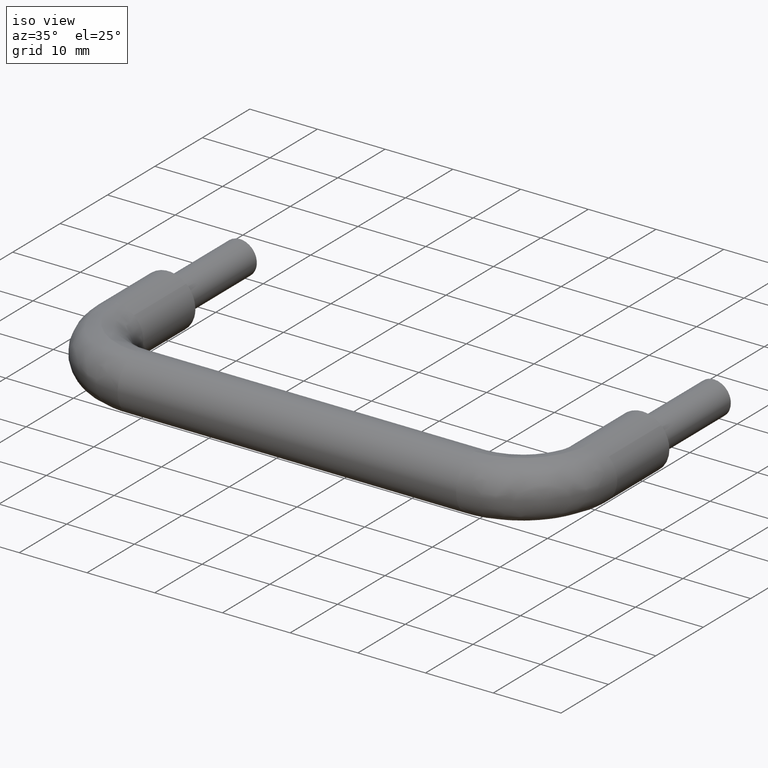
[diagram: clean part render]
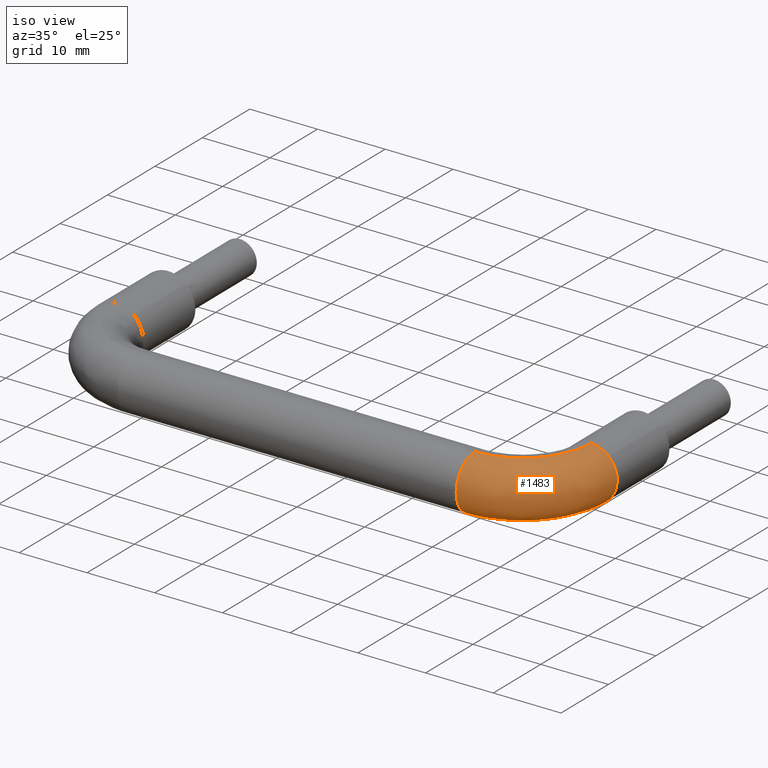
[diagram: same view with one face highlighted and labeled with its STEP entity id]
A machine part, iso view. The second image highlights one B-rep face of the part: STEP entity #1483.
In plain terms, the highlighted face is a freeform B-spline surface patch.
Its self-contained STEP definition (entity closure, byte-faithful):
#751=CARTESIAN_POINT('',(72.753417502998204,-11.000000000199600,2.901498242596409));
#752=VERTEX_POINT('',#751);
#758=CARTESIAN_POINT('',(74.000000000000014,-11.0,0.0));
#759=VERTEX_POINT('',#758);
#760=CARTESIAN_POINT('',(72.753417502998204,-11.000000000199599,2.901498242596409));
#761=CARTESIAN_POINT('',(74.000000000000014,-11.0,1.718536276351393));
#762=CARTESIAN_POINT('',(74.000000000000014,-11.0,0.0));
#770=(BOUNDED_CURVE()B_SPLINE_CURVE(2,(#760,#761,#762),.UNSPECIFIED.,.F.,.U.)B_SPLINE_CURVE_WITH_KNOTS((3,3),(0.871049485096384,1.0),.UNSPECIFIED.)CURVE()GEOMETRIC_REPRESENTATION_ITEM()RATIONAL_B_SPLINE_CURVE((0.853699664447265,0.848925074488911,1.0))REPRESENTATION_ITEM(''));
#771=EDGE_CURVE('',#752,#759,#770,.T.);
#773=CARTESIAN_POINT('',(69.899479617930368,-11.000000000273801,-3.998736757125752));
#774=VERTEX_POINT('',#773);
#775=CARTESIAN_POINT('',(74.000000000000014,-11.0,0.0));
#776=CARTESIAN_POINT('',(74.000000000000014,-11.0,-4.000000000000000));
#777=CARTESIAN_POINT('',(70.0,-11.0,-4.0));
#778=CARTESIAN_POINT('',(69.949731871210062,-11.0,-4.000000000000001));
#779=CARTESIAN_POINT('',(69.899479617930368,-11.000000000273797,-3.998736757125752));
#787=(BOUNDED_CURVE()B_SPLINE_CURVE(2,(#775,#776,#777,#778,#779),.UNSPECIFIED.,.F.,.U.)B_SPLINE_CURVE_WITH_KNOTS((3,2,3),(0.0,0.250000000000000,0.254420108256121),.UNSPECIFIED.)CURVE()GEOMETRIC_REPRESENTATION_ITEM()RATIONAL_B_SPLINE_CURVE((1.0,0.707106781186548,1.0,0.994821521061443,0.989826157622969))REPRESENTATION_ITEM(''));
#788=EDGE_CURVE('',#759,#774,#787,.T.);
#890=CARTESIAN_POINT('',(70.100520384564703,-11.000000000624340,3.998736757063030));
#891=VERTEX_POINT('',#890);
#907=CARTESIAN_POINT('',(70.100520384564703,-11.000000000624345,3.998736757063030));
#908=CARTESIAN_POINT('',(71.637893708832209,-11.000000000378193,3.960090211551882));
#909=CARTESIAN_POINT('',(72.753417502998204,-11.000000000199599,2.901498242596409));
#917=(BOUNDED_CURVE()B_SPLINE_CURVE(2,(#907,#908,#909),.UNSPECIFIED.,.F.,.U.)B_SPLINE_CURVE_WITH_KNOTS((3,3),(0.754420108474482,0.871049485096384),.UNSPECIFIED.)CURVE()GEOMETRIC_REPRESENTATION_ITEM()RATIONAL_B_SPLINE_CURVE((0.989826157129411,0.858018045423753,0.853699664447265))REPRESENTATION_ITEM(''));
#918=EDGE_CURVE('',#891,#752,#917,.T.);
#1032=CARTESIAN_POINT('',(59.999995540924871,-23.901497832919951,-2.753417935140964));
#1033=VERTEX_POINT('',#1032);
#1039=CARTESIAN_POINT('',(60.0,-25.0,0.0));
#1040=VERTEX_POINT('',#1039);
#1041=CARTESIAN_POINT('',(60.0,-25.0,0.0));
#1042=CARTESIAN_POINT('',(59.999998165934080,-25.000000000000018,-1.595837596406055));
#1043=CARTESIAN_POINT('',(59.999995540924878,-23.901497832919951,-2.753417935140964));
#1051=(BOUNDED_CURVE()B_SPLINE_CURVE(2,(#1041,#1042,#1043),.UNSPECIFIED.,.F.,.U.)B_SPLINE_CURVE_WITH_KNOTS((3,3),(0.0,0.121049488416020),.UNSPECIFIED.)CURVE()GEOMETRIC_REPRESENTATION_ITEM()RATIONAL_B_SPLINE_CURVE((1.0,0.858181702808441,0.853699664201436))REPRESENTATION_ITEM(''));
#1052=EDGE_CURVE('',#1040,#1033,#1051,.T.);
#1054=CARTESIAN_POINT('',(60.000000000247098,-21.100520383177319,3.998736757097906));
#1055=VERTEX_POINT('',#1054);
#1056=CARTESIAN_POINT('',(60.000000000247098,-21.100520383177322,3.998736757097907));
#1057=CARTESIAN_POINT('',(59.999999999999986,-24.999999999999989,3.900711501982625));
#1058=CARTESIAN_POINT('',(60.0,-25.0,0.0));
#1066=(BOUNDED_CURVE()B_SPLINE_CURVE(2,(#1056,#1057,#1058),.UNSPECIFIED.,.F.,.U.)B_SPLINE_CURVE_WITH_KNOTS((3,3),(0.754420108353063,1.0),.UNSPECIFIED.)CURVE()GEOMETRIC_REPRESENTATION_ITEM()RATIONAL_B_SPLINE_CURVE((0.989826157403852,0.712285260238679,1.0))REPRESENTATION_ITEM(''));
#1067=EDGE_CURVE('',#1055,#1040,#1066,.T.);
#1105=CARTESIAN_POINT('',(59.999990571734777,-20.899485182958191,-3.998736897012089));
#1106=VERTEX_POINT('',#1105);
#1120=CARTESIAN_POINT('',(59.999995540924871,-23.901497832919944,-2.753417935140964));
#1121=CARTESIAN_POINT('',(59.999992714095086,-22.718536224237177,-3.999999999997181));
#1122=CARTESIAN_POINT('',(59.999990688743168,-21.000000000000089,-3.999999999996398));
#1123=CARTESIAN_POINT('',(59.999990629503799,-20.949734655190763,-3.999999999996376));
#1124=CARTESIAN_POINT('',(59.999990571734784,-20.899485182958188,-3.998736897012089));
#1132=(BOUNDED_CURVE()B_SPLINE_CURVE(2,(#1120,#1121,#1122,#1123,#1124),.UNSPECIFIED.,.F.,.U.)B_SPLINE_CURVE_WITH_KNOTS((3,2,3),(0.121049488416020,0.250000000000000,0.254419864726559),.UNSPECIFIED.)CURVE()GEOMETRIC_REPRESENTATION_ITEM()RATIONAL_B_SPLINE_CURVE((0.853699664201436,0.848925078378107,1.0,0.994821806374072,0.989826708070981))REPRESENTATION_ITEM(''));
#1133=EDGE_CURVE('',#1033,#1106,#1132,.T.);
#1412=CARTESIAN_POINT('',(59.999990571734777,-20.899485182958184,-3.998736897012089));
#1413=CARTESIAN_POINT('',(69.899479617528286,-20.899491828722166,-3.998736827068921));
#1414=CARTESIAN_POINT('',(69.899479617930368,-11.000000000273795,-3.998736757125752));
#1422=(BOUNDED_CURVE()B_SPLINE_CURVE(2,(#1412,#1413,#1414),.UNSPECIFIED.,.F.,.U.)B_SPLINE_CURVE_WITH_KNOTS((3,3),(-1.733068856363078,-0.253787686499701),.UNSPECIFIED.)CURVE()GEOMETRIC_REPRESENTATION_ITEM()RATIONAL_B_SPLINE_CURVE((0.889551518137046,0.630646669306107,0.894193516980253))REPRESENTATION_ITEM(''));
#1423=EDGE_CURVE('',#1106,#774,#1422,.T.);
#1428=CARTESIAN_POINT('',(60.000000000247098,-21.100520383177319,3.998736757097906));
#1429=CARTESIAN_POINT('',(70.100520380524642,-21.100520381279154,3.998736757133199));
#1430=CARTESIAN_POINT('',(70.100520384564703,-11.000000000624340,3.998736757063030));
#1438=(BOUNDED_CURVE()B_SPLINE_CURVE(2,(#1428,#1429,#1430),.UNSPECIFIED.,.F.,.U.)B_SPLINE_CURVE_WITH_KNOTS((3,3),(-1.733067862682674,-0.253787686571340),.UNSPECIFIED.)CURVE()GEOMETRIC_REPRESENTATION_ITEM()RATIONAL_B_SPLINE_CURVE((0.889551170307972,0.630646846351479,0.894193516954727))REPRESENTATION_ITEM(''));
#1439=EDGE_CURVE('',#1055,#891,#1438,.T.);
#1444=CARTESIAN_POINT('',(59.313771253858839,-20.817973722288865,-3.997289985731354));
#1445=CARTESIAN_POINT('',(70.603059664059302,-21.607040229257635,-3.997289985731354));
#1446=CARTESIAN_POINT('',(69.818230604030532,-10.317456441197031,-3.997289985731354));
#1447=CARTESIAN_POINT('',(59.311770807036105,-20.846594403729334,-3.998011208681259));
#1448=CARTESIAN_POINT('',(70.633968974017066,-21.637961143085171,-3.998011208681259));
#1449=CARTESIAN_POINT('',(69.846852034314963,-10.315466737178838,-3.998011208681259));
#1450=CARTESIAN_POINT('',(59.030946272178561,-24.864391558554448,-4.099257138906548));
#1451=CARTESIAN_POINT('',(74.973045870707608,-25.978667001512697,-4.099257138906547));
#1452=CARTESIAN_POINT('',(73.864754312535212,-10.036150286944599,-4.099257138906548));
#1453=CARTESIAN_POINT('',(59.023937484284595,-24.964667298612138,-0.100520381773350));
#1454=CARTESIAN_POINT('',(75.081340075272024,-26.087001861525184,-0.100520381773350));
#1455=CARTESIAN_POINT('',(73.965032676251056,-10.029179137660998,-0.100520381773350));
#1456=CARTESIAN_POINT('',(59.016928696390629,-25.064943038669828,3.898216375359849));
#1457=CARTESIAN_POINT('',(75.189634279836369,-26.195336721537682,3.898216375359848));
#1458=CARTESIAN_POINT('',(74.065311039966886,-10.022207988377392,3.898216375359848));
#1459=CARTESIAN_POINT('',(59.297748882706756,-21.047208099053787,3.999460737801480));
#1460=CARTESIAN_POINT('',(70.850624573341335,-21.854698078529967,3.999460737801480));
#1461=CARTESIAN_POINT('',(70.047470978583561,-10.301520113422809,3.999460737801481));
#1462=CARTESIAN_POINT('',(59.299745032704578,-21.018648892907912,4.000180411613101));
#1463=CARTESIAN_POINT('',(70.819781654497987,-21.823843580741165,4.000180411613101));
#1464=CARTESIAN_POINT('',(70.018911025202186,-10.303505543690884,4.000180411613102));
#1472=(BOUNDED_SURFACE()B_SPLINE_SURFACE(2,2,((#1444,#1447,#1450,#1453,#1456,#1459,#1462),(#1445,#1448,#1451,#1454,#1457,#1460,#1463),(#1446,#1449,#1452,#1455,#1458,#1461,#1464)),.UNSPECIFIED.,.F.,.F.,.U.)B_SPLINE_SURFACE_WITH_KNOTS((3,3),(3,1,2,1,3),(0.0,25.510897526260070),(0.0,0.067853455216542,6.695270453186065,13.322687451155589,13.390393848171209),.UNSPECIFIED.)GEOMETRIC_REPRESENTATION_ITEM()RATIONAL_B_SPLINE_SURFACE(((0.922217553408016,0.919468561322752,0.648218623854239,0.916719569237488,0.648218623854239,0.919462603456213,0.922205637674937),(0.606864668477863,0.605055696002435,0.426559848934513,0.603246723527007,0.426559848934513,0.605051775432187,0.606856827337367),(0.927353964238323,0.924589661283441,0.651828961943844,0.921825358328560,0.651828961943844,0.924583670233788,0.927341982139017)))REPRESENTATION_ITEM('')SURFACE());
#1473=ORIENTED_EDGE('',*,*,#771,.F.);
#1474=ORIENTED_EDGE('',*,*,#918,.F.);
#1475=ORIENTED_EDGE('',*,*,#1439,.F.);
#1476=ORIENTED_EDGE('',*,*,#1067,.T.);
#1477=ORIENTED_EDGE('',*,*,#1052,.T.);
#1478=ORIENTED_EDGE('',*,*,#1133,.T.);
#1479=ORIENTED_EDGE('',*,*,#1423,.T.);
#1480=ORIENTED_EDGE('',*,*,#788,.F.);
#1481=EDGE_LOOP('',(#1473,#1474,#1475,#1476,#1477,#1478,#1479,#1480));
#1482=FACE_OUTER_BOUND('',#1481,.T.);
#1483=ADVANCED_FACE('',(#1482),#1472,.T.);